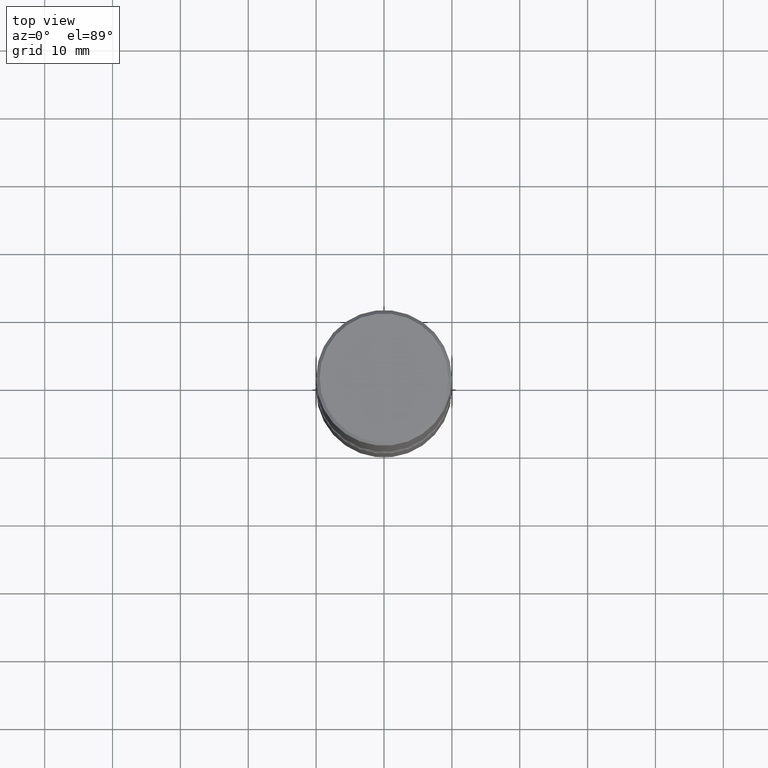
[diagram: clean part render]
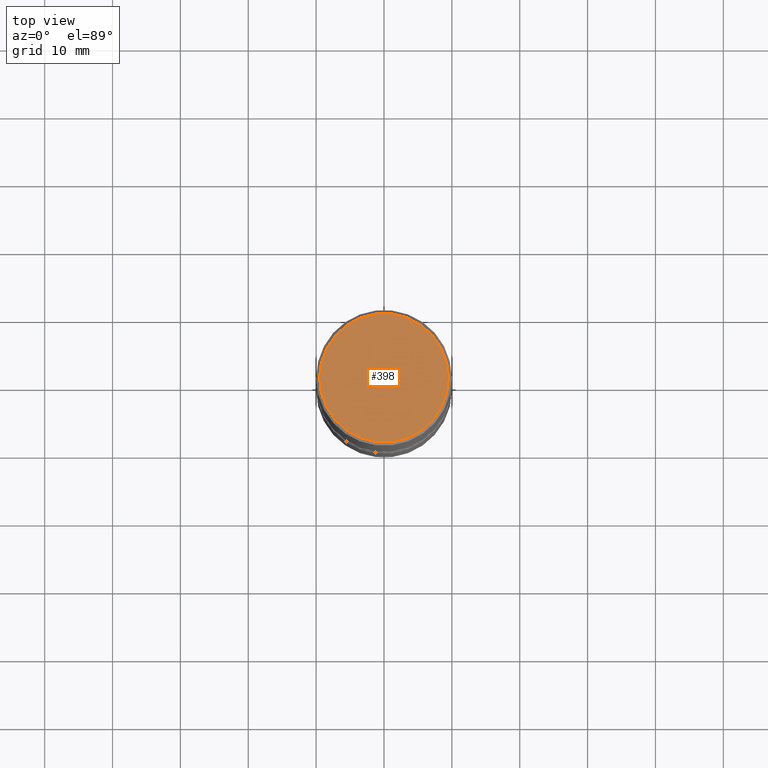
[diagram: same view with one face highlighted and labeled with its STEP entity id]
A machine part, top view. The second image highlights one B-rep face of the part: STEP entity #398.
In plain terms, the highlighted planar face has unit normal (0, -0, -1).
Its self-contained STEP definition (entity closure, byte-faithful):
#3 = CIRCLE ( 'NONE', #556, 0.3736999999999997546 ) ;
#47 = CARTESIAN_POINT ( 'NONE',  ( 0.3736999999999997546, -2.667287895133366781E-15, 1.280553747031968579E-17 ) ) ;
#65 = CARTESIAN_POINT ( 'NONE',  ( -3.131554243005659264E-46, 4.471029511141341874E-32, 1.280553747030123384E-17 ) ) ;
#85 = PLANE ( 'NONE',  #521 ) ;
#87 = FACE_OUTER_BOUND ( 'NONE', #384, .T. ) ;
#139 = DIRECTION ( 'NONE',  ( -2.445468806185136597E-29, 3.491481338843145583E-15, 1.000000000000000000 ) ) ;
#175 = CARTESIAN_POINT ( 'NONE',  ( 2.609533152651355831E-15, 0.3736999999999997546, -1.298363807590532206E-15 ) ) ;
#213 = CARTESIAN_POINT ( 'NONE',  ( -3.131554243005659264E-46, 4.471029511141341874E-32, 1.280553747030123384E-17 ) ) ;
#216 = DIRECTION ( 'NONE',  ( 2.438088387897960049E-29, -3.491481338843145188E-15, -1.000000000000000000 ) ) ;
#236 = VERTEX_POINT ( 'NONE', #47 ) ;
#247 = DIRECTION ( 'NONE',  ( -1.000000000000000000, 6.982962677686265922E-15, -4.876176775795935793E-29 ) ) ;
#258 = ORIENTED_EDGE ( 'NONE', *, *, #548, .T. ) ;
#280 = AXIS2_PLACEMENT_3D ( 'NONE', #65, #139, #408 ) ;
#325 = DIRECTION ( 'NONE',  ( 1.000000000000000000, -6.982962677686266711E-15, 4.876212485538978481E-29 ) ) ;
#332 = EDGE_CURVE ( 'NONE', #462, #236, #387, .T. ) ;
#384 = EDGE_LOOP ( 'NONE', ( #427, #258 ) ) ;
#385 = DIRECTION ( 'NONE',  ( -2.445468806185136597E-29, 3.491481338843145583E-15, 1.000000000000000000 ) ) ;
#387 = CIRCLE ( 'NONE', #280, 0.3736999999999997546 ) ;
#398 = ADVANCED_FACE ( 'NONE', ( #87 ), #85, .F. ) ;
#408 = DIRECTION ( 'NONE',  ( 1.000000000000000000, -6.982962677686266711E-15, 4.876212485538978481E-29 ) ) ;
#427 = ORIENTED_EDGE ( 'NONE', *, *, #332, .T. ) ;
#462 = VERTEX_POINT ( 'NONE', #466 ) ;
#466 = CARTESIAN_POINT ( 'NONE',  ( -0.3736999999999997546, 2.644447966039787480E-15, 1.280553747028286201E-17 ) ) ;
#521 = AXIS2_PLACEMENT_3D ( 'NONE', #175, #216, #247 ) ;
#548 = EDGE_CURVE ( 'NONE', #236, #462, #3, .T. ) ;
#556 = AXIS2_PLACEMENT_3D ( 'NONE', #213, #385, #325 ) ;